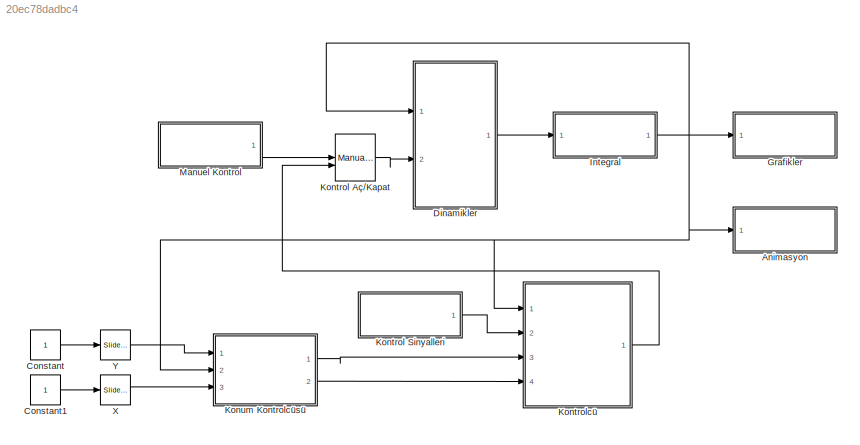
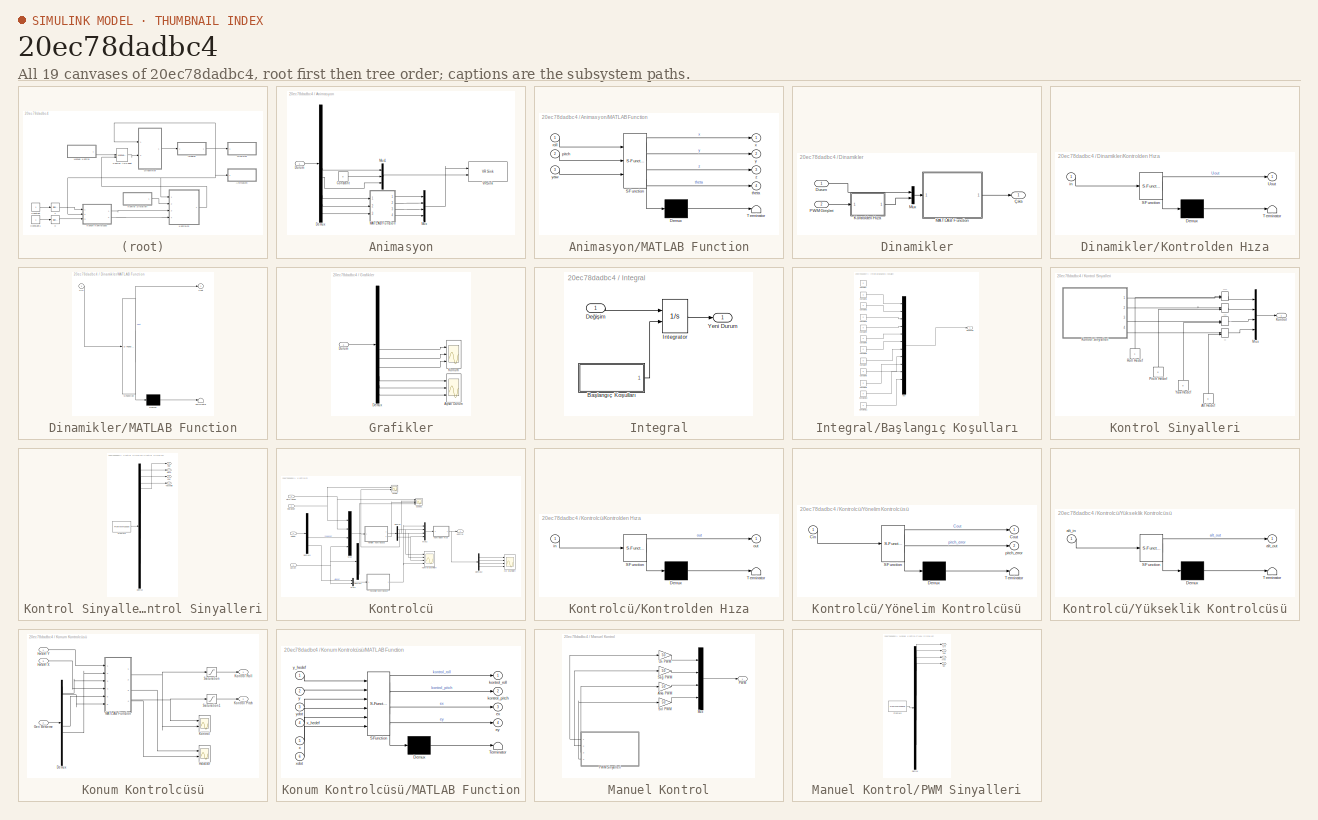
[diagram: thumbnail index - all 19 canvases of the model, root first then tree order]
MODEL slx_20ec78dadbc4
KIND model
BLOCK [SubSystem] Animasyon
  FunctionWithSeparateData = off
  MaskHideContents = off
  MinAlgLoopOccurrences = off
  Opaque = off
  Ports = [1]
  PropExecContextOutsideSubsystem = off
  RTWSystemCode = Auto
  RequestExecContextInheritance = off
BLOCK [Constant] Animasyon/Constant
  Value = 0
BLOCK [Demux] Animasyon/Demux
  DisplayOption = bar
  Outputs = 12
  Ports = [1, 12]
BLOCK [Inport] Animasyon/Durum
  IconDisplay = Port number
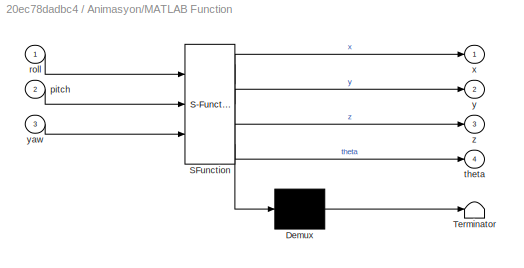
BLOCK [SubSystem] Animasyon/MATLAB Function
  ErrorFcn = Stateflow.Translate.translate
  FunctionWithSeparateData = off
  MaskHideContents = off
  MinAlgLoopOccurrences = off
  Opaque = off
  PermitHierarchicalResolution = ExplicitOnly
  Ports = [3, 4]
  PropExecContextOutsideSubsystem = off
  RTWSystemCode = Auto
  RequestExecContextInheritance = off
  SFBlockType = MATLAB Function
  TreatAsAtomicUnit = on
BLOCK [Demux] Animasyon/MATLAB Function/ Demux 
  Outputs = 1
  Ports = [1, 1]
BLOCK [S-Function] Animasyon/MATLAB Function/ SFunction 
  EnableBusSupport = on
  FunctionName = sf_sfun
  PortCounts = [3 5]
  Ports = [3, 5]
  Tag = Stateflow S-Function Quadsim 5
BLOCK [Terminator] Animasyon/MATLAB Function/ Terminator 
BLOCK [Inport] Animasyon/MATLAB Function/pitch
  IconDisplay = Port number
  Port = 2
BLOCK [Inport] Animasyon/MATLAB Function/roll
  IconDisplay = Port number
BLOCK [Outport] Animasyon/MATLAB Function/theta
  IconDisplay = Port number
  Port = 4
BLOCK [Outport] Animasyon/MATLAB Function/x
  IconDisplay = Port number
BLOCK [Outport] Animasyon/MATLAB Function/y
  IconDisplay = Port number
  Port = 2
BLOCK [Inport] Animasyon/MATLAB Function/yaw
  IconDisplay = Port number
  Port = 3
BLOCK [Outport] Animasyon/MATLAB Function/z
  IconDisplay = Port number
  Port = 3
BLOCK [Mux] Animasyon/Mux
  DisplayOption = bar
  Ports = [4, 1]
BLOCK [Mux] Animasyon/Mux1
  DisplayOption = bar
  Inputs = 3
  Ports = [3, 1]
BLOCK [Reference] Animasyon/VRSink  REF=vrlib/VR Sink
  AllowVariableSize = off
  AutoView = off
  FieldsWritten = Quadro.rotation.4.1.1.double#Quadro.translation.3.1.1.double
  InstantiateOnLoad = on
  Ports = [2]
  RemoteChange = off
  RemoteView = off
  SampleTime = 0.1
  SourceBlock = vrlib/VR Sink
  SourceType = Virtual Reality Sink
  VideoDimensions = []
  ViewEnable = on
  WorldFileName = quad.wrl
BLOCK [Constant] Constant
BLOCK [Constant] Constant1
BLOCK [SubSystem] Dinamikler
  FunctionWithSeparateData = off
  MaskHideContents = off
  MinAlgLoopOccurrences = off
  Opaque = off
  Ports = [2, 1]
  PropExecContextOutsideSubsystem = off
  RTWSystemCode = Auto
  RequestExecContextInheritance = off
BLOCK [Inport] Dinamikler/Durum
  IconDisplay = Port number
BLOCK [SubSystem] Dinamikler/Kontrolden Hıza
  ErrorFcn = Stateflow.Translate.translate
  FunctionWithSeparateData = off
  MaskHideContents = off
  MinAlgLoopOccurrences = off
  Opaque = off
  PermitHierarchicalResolution = ExplicitOnly
  Ports = [1, 1]
  PropExecContextOutsideSubsystem = off
  RTWSystemCode = Auto
  RequestExecContextInheritance = off
  SFBlockType = MATLAB Function
  TreatAsAtomicUnit = on
BLOCK [Demux] Dinamikler/Kontrolden Hıza/ Demux 
  Outputs = 1
  Ports = [1, 1]
BLOCK [S-Function] Dinamikler/Kontrolden Hıza/ SFunction 
  EnableBusSupport = on
  FunctionName = sf_sfun
  PortCounts = [1 2]
  Ports = [1, 2]
  Tag = Stateflow S-Function Quadsim 7
BLOCK [Terminator] Dinamikler/Kontrolden Hıza/ Terminator 
BLOCK [Outport] Dinamikler/Kontrolden Hıza/Uout
  IconDisplay = Port number
BLOCK [Inport] Dinamikler/Kontrolden Hıza/in
  IconDisplay = Port number
BLOCK [SubSystem] Dinamikler/MATLAB Function
  ErrorFcn = Stateflow.Translate.translate
  FunctionWithSeparateData = off
  MaskHideContents = off
  MinAlgLoopOccurrences = off
  Opaque = off
  PermitHierarchicalResolution = ExplicitOnly
  Ports = [1, 1]
  PropExecContextOutsideSubsystem = off
  RTWSystemCode = Auto
  RequestExecContextInheritance = off
  SFBlockType = MATLAB Function
  TreatAsAtomicUnit = on
BLOCK [Demux] Dinamikler/MATLAB Function/ Demux 
  Outputs = 1
  Ports = [1, 1]
BLOCK [S-Function] Dinamikler/MATLAB Function/ SFunction 
  EnableBusSupport = on
  FunctionName = sf_sfun
  PortCounts = [1 2]
  Ports = [1, 2]
  Tag = Stateflow S-Function Quadsim 2
BLOCK [Terminator] Dinamikler/MATLAB Function/ Terminator 
BLOCK [Inport] Dinamikler/MATLAB Function/Xin
  IconDisplay = Port number
BLOCK [Outport] Dinamikler/MATLAB Function/Xout
  IconDisplay = Port number
BLOCK [Mux] Dinamikler/Mux
  DisplayOption = bar
  Inputs = 2
  Ports = [2, 1]
BLOCK [Inport] Dinamikler/PWM Girişleri
  IconDisplay = Port number
  Port = 2
BLOCK [Outport] Dinamikler/Çıktı
  IconDisplay = Port number
BLOCK [SubSystem] Grafikler
  FunctionWithSeparateData = off
  MaskHideContents = off
  MinAlgLoopOccurrences = off
  Opaque = off
  Ports = [1]
  PropExecContextOutsideSubsystem = off
  RTWSystemCode = Auto
  RequestExecContextInheritance = off
BLOCK [Scope] Grafikler/Açısal Durum
  DataFormat = StructureWithTime
  Floating = off
  MaxDataPoints = 10000
  NumInputPorts = 3
  Ports = [3]
  SampleTime = 0
  ShowLegends = off
  YMax = 3e-06~1.5e-08~0.04
  YMin = 5e-07~-2.75e-08~-0.07
BLOCK [Demux] Grafikler/Demux
  DisplayOption = bar
  Outputs = 12
  Ports = [1, 12]
BLOCK [Inport] Grafikler/Durum
  IconDisplay = Port number
BLOCK [Scope] Grafikler/Konum
  DataFormat = StructureWithTime
  Floating = off
  NumInputPorts = 3
  Ports = [3]
  SampleTime = 0
  SaveName = ScopeData1
  ShowLegends = off
  YMax = 3.5~-0.87~-650
  YMin = 3.175~-0.97~-900
BLOCK [SubSystem] Integral
  FunctionWithSeparateData = off
  MaskHideContents = off
  MinAlgLoopOccurrences = off
  Opaque = off
  Ports = [1, 1]
  PropExecContextOutsideSubsystem = off
  RTWSystemCode = Auto
  RequestExecContextInheritance = off
BLOCK [SubSystem] Integral/Başlangıç Koşulları
  FunctionWithSeparateData = off
  MaskHideContents = off
  MinAlgLoopOccurrences = off
  Opaque = off
  Ports = [0, 1]
  PropExecContextOutsideSubsystem = off
  RTWSystemCode = Auto
  RequestExecContextInheritance = off
BLOCK [Outport] Integral/Başlangıç Koşulları/Başlangıç
  IconDisplay = Port number
BLOCK [Constant] Integral/Başlangıç Koşulları/Constant
  Value = 0
BLOCK [Constant] Integral/Başlangıç Koşulları/Constant1
  Value = 0
BLOCK [Constant] Integral/Başlangıç Koşulları/Constant10
  Value = 0
BLOCK [Constant] Integral/Başlangıç Koşulları/Constant11
  Value = 0
BLOCK [Constant] Integral/Başlangıç Koşulları/Constant2
  Value = 0
BLOCK [Constant] Integral/Başlangıç Koşulları/Constant3
  Value = 0
BLOCK [Constant] Integral/Başlangıç Koşulları/Constant4
  Value = 0
BLOCK [Constant] Integral/Başlangıç Koşulları/Constant5
  Value = 0
BLOCK [Constant] Integral/Başlangıç Koşulları/Constant6
  Value = 0
BLOCK [Constant] Integral/Başlangıç Koşulları/Constant7
  Value = 0
BLOCK [Constant] Integral/Başlangıç Koşulları/Constant8
  Value = 0
BLOCK [Constant] Integral/Başlangıç Koşulları/Constant9
  Value = 0
BLOCK [Mux] Integral/Başlangıç Koşulları/Mux
  DisplayOption = bar
  Inputs = 12
  Ports = [12, 1]
BLOCK [Inport] Integral/Değişim
  IconDisplay = Port number
BLOCK [Integrator] Integral/Integrator
  InitialConditionSource = external
  Ports = [2, 1]
BLOCK [Outport] Integral/Yeni Durum
  IconDisplay = Port number
BLOCK [ManualSwitch] Kontrol Aç//Kapat
  CurrentSetting = 0
BLOCK [SubSystem] Kontrol Sinyalleri
  FunctionWithSeparateData = off
  MaskHideContents = off
  MinAlgLoopOccurrences = off
  Opaque = off
  Ports = [0, 1]
  PropExecContextOutsideSubsystem = off
  RTWSystemCode = Auto
  RequestExecContextInheritance = off
BLOCK [ManualSwitch] Kontrol Sinyalleri/-
BLOCK [ManualSwitch] Kontrol Sinyalleri/--
BLOCK [ManualSwitch] Kontrol Sinyalleri/---
BLOCK [ManualSwitch] Kontrol Sinyalleri/----
BLOCK [Constant] Kontrol Sinyalleri/Alt Hedef
  Value = 0
BLOCK [Outport] Kontrol Sinyalleri/Kontrol
  IconDisplay = Port number
BLOCK [SubSystem] Kontrol Sinyalleri/Kontrol Sinyalleri
  ClipboardFcn = sigbuilder_block('clipboard');
  CloseFcn = sigbuilder_block('close');
  ContinueFcn = sigbuilder_block('continue');
  CopyFcn = sigbuilder_block('copy');
  DeleteFcn = sigbuilder_block('delete');
  FunctionWithSeparateData = off
  LoadFcn = sigbuilder_block('load');
  MaskHideContents = on
  MinAlgLoopOccurrences = off
  ModelCloseFcn = sigbuilder_block('modelClose');
  NameChangeFcn = sigbuilder_block('namechange');
  Opaque = off
  OpenFcn = sigbuilder_block('open',[6 31.5 1012.5 481.5 ]);
  PauseFcn = sigbuilder_block('pause');
  Ports = [0, 4]
  PreSaveFcn = sigbuilder_block('preSave');
  PropExecContextOutsideSubsystem = off
  RTWSystemCode = Auto
  RequestExecContextInheritance = off
  StartFcn = sigbuilder_block('start');
  StopFcn = sigbuilder_block('stop');
  Tag = STV Subsys
BLOCK [Demux] Kontrol Sinyalleri/Kontrol Sinyalleri/Demux
  Ports = [1, 4]
  Tag = STV Demux
BLOCK [FromWorkspace] Kontrol Sinyalleri/Kontrol Sinyalleri/FromWs
  SampleTime = 0
  Tag = STV FromWs
  VariableName = tuvar
  ZeroCross = on
BLOCK [Outport] Kontrol Sinyalleri/Kontrol Sinyalleri/Pitch
  IconDisplay = Port number
  Port = 2
  Tag = STV Outport
BLOCK [Outport] Kontrol Sinyalleri/Kontrol Sinyalleri/Roll
  IconDisplay = Port number
  Tag = STV Outport
BLOCK [Outport] Kontrol Sinyalleri/Kontrol Sinyalleri/Yaw
  IconDisplay = Port number
  Port = 3
  Tag = STV Outport
BLOCK [Outport] Kontrol Sinyalleri/Kontrol Sinyalleri/Yükseklik
  IconDisplay = Port number
  Port = 4
  Tag = STV Outport
BLOCK [Mux] Kontrol Sinyalleri/Mux
  DisplayOption = bar
  Ports = [4, 1]
BLOCK [Constant] Kontrol Sinyalleri/Pitch Hedef
  Value = 0
BLOCK [Constant] Kontrol Sinyalleri/Roll Hedef
BLOCK [Constant] Kontrol Sinyalleri/Yaw Hedef
  Value = 0
BLOCK [SubSystem] Kontrolcü
  FunctionWithSeparateData = off
  MaskHideContents = off
  MinAlgLoopOccurrences = off
  Opaque = off
  Ports = [4, 1]
  PropExecContextOutsideSubsystem = off
  RTWSystemCode = Auto
  RequestExecContextInheritance = off
BLOCK [Demux] Kontrolcü/Demux
  DisplayOption = bar
  Outputs = 3
  Ports = [1, 3]
BLOCK [Demux] Kontrolcü/Demux1
  DisplayOption = bar
  Ports = [1, 4]
BLOCK [Demux] Kontrolcü/Demux2
  DisplayOption = bar
  Ports = [1, 4]
BLOCK [Demux] Kontrolcü/Demux3
  DisplayOption = bar
  Outputs = 12
  Ports = [1, 12]
BLOCK [Inport] Kontrolcü/Durum
  IconDisplay = Port number
BLOCK [Inport] Kontrolcü/Hedef
  IconDisplay = Port number
  Port = 2
BLOCK [Scope] Kontrolcü/Hız Grafikleri
  DataFormat = StructureWithTime
  Floating = off
  NumInputPorts = 4
  Ports = [4]
  SampleTime = 0
  SaveName = ScopeData3
  ShowLegends = off
  YMax = 100~1~0~120
  YMin = -1200~-1~-9~-10
  ZoomMode = xonly
BLOCK [Outport] Kontrolcü/Kontrol
  IconDisplay = Port number
BLOCK [Scope] Kontrolcü/Kontrol Grafikleri
  DataFormat = StructureWithTime
  Floating = off
  NumInputPorts = 4
  Ports = [4]
  SampleTime = 0
  SaveName = ScopeData2
  ShowLegends = off
  YMax = 100~1~0~120
  YMin = -1200~-1~-9~-10
  ZoomMode = xonly
BLOCK [SubSystem] Kontrolcü/Kontrolden Hıza
  ErrorFcn = Stateflow.Translate.translate
  FunctionWithSeparateData = off
  MaskHideContents = off
  MinAlgLoopOccurrences = off
  Opaque = off
  PermitHierarchicalResolution = ExplicitOnly
  Ports = [1, 1]
  PropExecContextOutsideSubsystem = off
  RTWSystemCode = Auto
  RequestExecContextInheritance = off
  SFBlockType = MATLAB Function
  TreatAsAtomicUnit = on
BLOCK [Demux] Kontrolcü/Kontrolden Hıza/ Demux 
  Outputs = 1
  Ports = [1, 1]
BLOCK [S-Function] Kontrolcü/Kontrolden Hıza/ SFunction 
  EnableBusSupport = on
  FunctionName = sf_sfun
  PortCounts = [1 2]
  Ports = [1, 2]
  Tag = Stateflow S-Function Quadsim 6
BLOCK [Terminator] Kontrolcü/Kontrolden Hıza/ Terminator 
BLOCK [Inport] Kontrolcü/Kontrolden Hıza/in
  IconDisplay = Port number
BLOCK [Outport] Kontrolcü/Kontrolden Hıza/out
  IconDisplay = Port number
BLOCK [Mux] Kontrolcü/Mux
  DisplayOption = bar
  Ports = [4, 1]
BLOCK [Mux] Kontrolcü/Mux1
  DisplayOption = bar
  Inputs = 2
  Ports = [2, 1]
BLOCK [Mux] Kontrolcü/Mux2
  DisplayOption = bar
  Ports = [4, 1]
BLOCK [Inport] Kontrolcü/Pitch Hedef
  IconDisplay = Port number
  Port = 4
BLOCK [Inport] Kontrolcü/Roll Hedef
  IconDisplay = Port number
  Port = 3
BLOCK [Scope] Kontrolcü/Scope
  DataFormat = StructureWithTime
  Floating = off
  NumInputPorts = 2
  Ports = [2]
  SampleTime = 0
  SaveName = ScopeData6
  ShowLegends = off
  YMax = 5~5
  YMin = -5~-5
BLOCK [Scope] Kontrolcü/Scope1
  DataFormat = StructureWithTime
  Floating = off
  NumInputPorts = 4
  Ports = [4]
  SampleTime = 0
  SaveName = ScopeData7
  ShowLegends = off
  YMax = 5~5~5~5
  YMin = -5~-5~-5~-5
BLOCK [SubSystem] Kontrolcü/Yönelim Kontrolcüsü
  ErrorFcn = Stateflow.Translate.translate
  FunctionWithSeparateData = off
  MaskHideContents = off
  MinAlgLoopOccurrences = off
  Opaque = off
  PermitHierarchicalResolution = ExplicitOnly
  Ports = [1, 2]
  PropExecContextOutsideSubsystem = off
  RTWSystemCode = Auto
  RequestExecContextInheritance = off
  SFBlockType = MATLAB Function
  TreatAsAtomicUnit = on
BLOCK [Demux] Kontrolcü/Yönelim Kontrolcüsü/ Demux 
  Outputs = 1
  Ports = [1, 1]
BLOCK [S-Function] Kontrolcü/Yönelim Kontrolcüsü/ SFunction 
  EnableBusSupport = on
  FunctionName = sf_sfun
  PortCounts = [1 3]
  Ports = [1, 3]
  Tag = Stateflow S-Function Quadsim 1
BLOCK [Terminator] Kontrolcü/Yönelim Kontrolcüsü/ Terminator 
BLOCK [Inport] Kontrolcü/Yönelim Kontrolcüsü/Cin
  IconDisplay = Port number
BLOCK [Outport] Kontrolcü/Yönelim Kontrolcüsü/Cout
  IconDisplay = Port number
BLOCK [Outport] Kontrolcü/Yönelim Kontrolcüsü/pitch_error
  IconDisplay = Port number
  Port = 2
BLOCK [SubSystem] Kontrolcü/Yükseklik Kontrolcüsü
  ErrorFcn = Stateflow.Translate.translate
  FunctionWithSeparateData = off
  MaskHideContents = off
  MinAlgLoopOccurrences = off
  Opaque = off
  PermitHierarchicalResolution = ExplicitOnly
  Ports = [1, 1]
  PropExecContextOutsideSubsystem = off
  RTWSystemCode = Auto
  RequestExecContextInheritance = off
  SFBlockType = MATLAB Function
  TreatAsAtomicUnit = on
BLOCK [Demux] Kontrolcü/Yükseklik Kontrolcüsü/ Demux 
  Outputs = 1
  Ports = [1, 1]
BLOCK [S-Function] Kontrolcü/Yükseklik Kontrolcüsü/ SFunction 
  EnableBusSupport = on
  FunctionName = sf_sfun
  PortCounts = [1 2]
  Ports = [1, 2]
  Tag = Stateflow S-Function Quadsim 3
BLOCK [Terminator] Kontrolcü/Yükseklik Kontrolcüsü/ Terminator 
BLOCK [Inport] Kontrolcü/Yükseklik Kontrolcüsü/alt_in
  IconDisplay = Port number
BLOCK [Outport] Kontrolcü/Yükseklik Kontrolcüsü/alt_out
  IconDisplay = Port number
BLOCK [SubSystem] Konum Kontrolcüsü
  FunctionWithSeparateData = off
  MaskHideContents = off
  MinAlgLoopOccurrences = off
  Opaque = off
  Ports = [3, 2]
  PropExecContextOutsideSubsystem = off
  RTWSystemCode = Auto
  RequestExecContextInheritance = off
BLOCK [Demux] Konum Kontrolcüsü/Demux
  DisplayOption = bar
  Outputs = 12
  Ports = [1, 12]
BLOCK [Inport] Konum Kontrolcüsü/Geri Besleme
  IconDisplay = Port number
  Port = 2
BLOCK [Scope] Konum Kontrolcüsü/Hatalar
  DataFormat = StructureWithTime
  Floating = off
  NumInputPorts = 2
  Ports = [2]
  SampleTime = 0
  SaveName = ScopeData4
  ShowLegends = off
  YMax = 5~5
  YMin = -5~-5
BLOCK [Inport] Konum Kontrolcüsü/Hedef X
  IconDisplay = Port number
  Port = 3
BLOCK [Inport] Konum Kontrolcüsü/Hedef Y
  IconDisplay = Port number
BLOCK [Scope] Konum Kontrolcüsü/Kontrol
  DataFormat = StructureWithTime
  Floating = off
  NumInputPorts = 2
  Ports = [2]
  SampleTime = 0
  SaveName = ScopeData5
  ShowLegends = off
  YMax = 5~5
  YMin = -5~-5
BLOCK [Outport] Konum Kontrolcüsü/Kontrol Pitch
  IconDisplay = Port number
  Port = 2
BLOCK [Outport] Konum Kontrolcüsü/Kontrol Roll
  IconDisplay = Port number
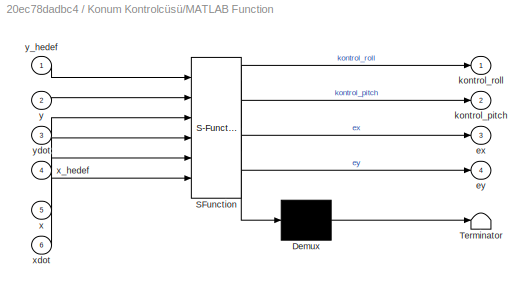
BLOCK [SubSystem] Konum Kontrolcüsü/MATLAB Function
  ErrorFcn = Stateflow.Translate.translate
  FunctionWithSeparateData = off
  MaskHideContents = off
  MinAlgLoopOccurrences = off
  Opaque = off
  PermitHierarchicalResolution = ExplicitOnly
  Ports = [6, 4]
  PropExecContextOutsideSubsystem = off
  RTWSystemCode = Auto
  RequestExecContextInheritance = off
  SFBlockType = MATLAB Function
  TreatAsAtomicUnit = on
BLOCK [Demux] Konum Kontrolcüsü/MATLAB Function/ Demux 
  Outputs = 1
  Ports = [1, 1]
BLOCK [S-Function] Konum Kontrolcüsü/MATLAB Function/ SFunction 
  EnableBusSupport = on
  FunctionName = sf_sfun
  PortCounts = [6 5]
  Ports = [6, 5]
  Tag = Stateflow S-Function Quadsim 4
BLOCK [Terminator] Konum Kontrolcüsü/MATLAB Function/ Terminator 
BLOCK [Outport] Konum Kontrolcüsü/MATLAB Function/ex
  IconDisplay = Port number
  Port = 3
BLOCK [Outport] Konum Kontrolcüsü/MATLAB Function/ey
  IconDisplay = Port number
  Port = 4
BLOCK [Outport] Konum Kontrolcüsü/MATLAB Function/kontrol_pitch
  IconDisplay = Port number
  Port = 2
BLOCK [Outport] Konum Kontrolcüsü/MATLAB Function/kontrol_roll
  IconDisplay = Port number
BLOCK [Inport] Konum Kontrolcüsü/MATLAB Function/x
  IconDisplay = Port number
  Port = 5
BLOCK [Inport] Konum Kontrolcüsü/MATLAB Function/x_hedef
  IconDisplay = Port number
  Port = 4
BLOCK [Inport] Konum Kontrolcüsü/MATLAB Function/xdot
  IconDisplay = Port number
  Port = 6
BLOCK [Inport] Konum Kontrolcüsü/MATLAB Function/y
  IconDisplay = Port number
  Port = 2
BLOCK [Inport] Konum Kontrolcüsü/MATLAB Function/y_hedef
  IconDisplay = Port number
BLOCK [Inport] Konum Kontrolcüsü/MATLAB Function/ydot
  IconDisplay = Port number
  Port = 3
BLOCK [Saturate] Konum Kontrolcüsü/Saturation
  InputPortMap = u0
  LowerLimit = -2
  Ports = [1, 1]
  UpperLimit = 2
BLOCK [Saturate] Konum Kontrolcüsü/Saturation1
  InputPortMap = u0
  LowerLimit = -2
  Ports = [1, 1]
  UpperLimit = 2
BLOCK [SubSystem] Manuel Kontrol
  FunctionWithSeparateData = off
  MaskHideContents = off
  MinAlgLoopOccurrences = off
  Opaque = off
  Ports = [0, 1]
  PropExecContextOutsideSubsystem = off
  RTWSystemCode = Auto
  RequestExecContextInheritance = off
BLOCK [Gain] Manuel Kontrol/Arka PWM
  Gain = 50
  OutDataTypeStr = Inherit: Inherit via internal rule
  ParamDataTypeStr = Inherit: Inherit via internal rule
  SaturateOnIntegerOverflow = off
BLOCK [Mux] Manuel Kontrol/Mux
  DisplayOption = bar
  Ports = [4, 1]
BLOCK [Outport] Manuel Kontrol/PWM
  IconDisplay = Port number
BLOCK [SubSystem] Manuel Kontrol/PWM Sinyalleri
  ClipboardFcn = sigbuilder_block('clipboard');
  CloseFcn = sigbuilder_block('close');
  ContinueFcn = sigbuilder_block('continue');
  CopyFcn = sigbuilder_block('copy');
  DeleteFcn = sigbuilder_block('delete');
  FunctionWithSeparateData = off
  LoadFcn = sigbuilder_block('load');
  MaskHideContents = on
  MinAlgLoopOccurrences = off
  ModelCloseFcn = sigbuilder_block('modelClose');
  NameChangeFcn = sigbuilder_block('namechange');
  Opaque = off
  OpenFcn = sigbuilder_block('open',[6 28.5 1012.5 484.5 ]);
  PauseFcn = sigbuilder_block('pause');
  Ports = [0, 4]
  PreSaveFcn = sigbuilder_block('preSave');
  PropExecContextOutsideSubsystem = off
  RTWSystemCode = Auto
  RequestExecContextInheritance = off
  StartFcn = sigbuilder_block('start');
  StopFcn = sigbuilder_block('stop');
  Tag = STV Subsys
BLOCK [Outport] Manuel Kontrol/PWM Sinyalleri/Arka
  IconDisplay = Port number
  Port = 3
  Tag = STV Outport
BLOCK [Demux] Manuel Kontrol/PWM Sinyalleri/Demux
  Ports = [1, 4]
  Tag = STV Demux
BLOCK [FromWorkspace] Manuel Kontrol/PWM Sinyalleri/FromWs
  SampleTime = 0
  Tag = STV FromWs
  VariableName = tuvar
  ZeroCross = on
BLOCK [Outport] Manuel Kontrol/PWM Sinyalleri/Sağ
  IconDisplay = Port number
  Port = 2
  Tag = STV Outport
BLOCK [Outport] Manuel Kontrol/PWM Sinyalleri/Sol
  IconDisplay = Port number
  Port = 4
  Tag = STV Outport
BLOCK [Outport] Manuel Kontrol/PWM Sinyalleri/Ön
  IconDisplay = Port number
  Tag = STV Outport
BLOCK [Gain] Manuel Kontrol/Sağ PWM
  Gain = 50
  OutDataTypeStr = Inherit: Inherit via internal rule
  ParamDataTypeStr = Inherit: Inherit via internal rule
  SaturateOnIntegerOverflow = off
BLOCK [Gain] Manuel Kontrol/Sol PWM
  Gain = 50
  OutDataTypeStr = Inherit: Inherit via internal rule
  ParamDataTypeStr = Inherit: Inherit via internal rule
  SaturateOnIntegerOverflow = off
BLOCK [Gain] Manuel Kontrol/Ön PWM
  Gain = 50
  OutDataTypeStr = Inherit: Inherit via internal rule
  ParamDataTypeStr = Inherit: Inherit via internal rule
  SaturateOnIntegerOverflow = off
BLOCK [Reference] X  REF=simulink/Math
Operations/Slider
Gain
  Ports = [1, 1]
  SourceBlock = simulink/Math\nOperations/Slider\nGain
  SourceType = Slider Gain
  gain = 5
  high = 5
  low = -5
BLOCK [Reference] Y  REF=simulink/Math
Operations/Slider
Gain
  Ports = [1, 1]
  SourceBlock = simulink/Math\nOperations/Slider\nGain
  SourceType = Slider Gain
  gain = -5
  high = 5
  low = -5
LINE Animasyon/Constant:1 -> Animasyon/Mux1:2
LINE Animasyon/Demux:10 -> Animasyon/MATLAB Function:1
LINE Animasyon/Demux:11 -> Animasyon/MATLAB Function:2
LINE Animasyon/Demux:12 -> Animasyon/MATLAB Function:3
LINE Animasyon/Demux:7 -> Animasyon/Mux1:1
LINE Animasyon/Demux:8 -> Animasyon/Mux1:3
LINE Animasyon/Durum:1 -> Animasyon/Demux:1
LINE Animasyon/MATLAB Function:1 -> Animasyon/Mux:1
LINE Animasyon/MATLAB Function:2 -> Animasyon/Mux:2
LINE Animasyon/MATLAB Function:3 -> Animasyon/Mux:3
LINE Animasyon/MATLAB Function:4 -> Animasyon/Mux:4
LINE Animasyon/Mux1:1 -> Animasyon/VRSink:2
LINE Animasyon/Mux:1 -> Animasyon/VRSink:1
LINE Constant1:1 -> X:1
LINE Constant:1 -> Y:1
LINE Dinamikler/Durum:1 -> Dinamikler/Mux:1
LINE Dinamikler/Kontrolden Hıza:1 -> Dinamikler/Mux:2
LINE Dinamikler/MATLAB Function:1 -> Dinamikler/Çıktı:1
LINE Dinamikler/Mux:1 -> Dinamikler/MATLAB Function:1
LINE Dinamikler/PWM Girişleri:1 -> Dinamikler/Kontrolden Hıza:1
LINE Dinamikler:1 -> Integral:1
LINE Grafikler/Demux:10 -> Grafikler/Açısal Durum:1
LINE Grafikler/Demux:11 -> Grafikler/Açısal Durum:2
LINE Grafikler/Demux:12 -> Grafikler/Açısal Durum:3
LINE Grafikler/Demux:7 -> Grafikler/Konum:1
LINE Grafikler/Demux:8 -> Grafikler/Konum:2
LINE Grafikler/Demux:9 -> Grafikler/Konum:3
LINE Grafikler/Durum:1 -> Grafikler/Demux:1
LINE Integral/Başlangıç Koşulları/Constant10:1 -> Integral/Başlangıç Koşulları/Mux:10
LINE Integral/Başlangıç Koşulları/Constant11:1 -> Integral/Başlangıç Koşulları/Mux:11
LINE Integral/Başlangıç Koşulları/Constant1:1 -> Integral/Başlangıç Koşulları/Mux:1
LINE Integral/Başlangıç Koşulları/Constant2:1 -> Integral/Başlangıç Koşulları/Mux:2
LINE Integral/Başlangıç Koşulları/Constant3:1 -> Integral/Başlangıç Koşulları/Mux:3
LINE Integral/Başlangıç Koşulları/Constant4:1 -> Integral/Başlangıç Koşulları/Mux:4
LINE Integral/Başlangıç Koşulları/Constant5:1 -> Integral/Başlangıç Koşulları/Mux:5
LINE Integral/Başlangıç Koşulları/Constant6:1 -> Integral/Başlangıç Koşulları/Mux:6
LINE Integral/Başlangıç Koşulları/Constant7:1 -> Integral/Başlangıç Koşulları/Mux:7
LINE Integral/Başlangıç Koşulları/Constant8:1 -> Integral/Başlangıç Koşulları/Mux:8
LINE Integral/Başlangıç Koşulları/Constant9:1 -> Integral/Başlangıç Koşulları/Mux:9
LINE Integral/Başlangıç Koşulları/Mux:1 -> Integral/Başlangıç Koşulları/Başlangıç:1
LINE Integral/Başlangıç Koşulları:1 -> Integral/Integrator:2
LINE Integral/Değişim:1 -> Integral/Integrator:1
LINE Integral/Integrator:1 -> Integral/Yeni Durum:1
NET Integral:1 -> Animasyon:1, Dinamikler:1, Grafikler:1, Kontrolcü:1, Konum Kontrolcüsü:2
LINE Kontrol Aç//Kapat:1 -> Dinamikler:2
LINE Kontrol Sinyalleri/----:1 -> Kontrol Sinyalleri/Mux:1
LINE Kontrol Sinyalleri/---:1 -> Kontrol Sinyalleri/Mux:2
LINE Kontrol Sinyalleri/--:1 -> Kontrol Sinyalleri/Mux:4
LINE Kontrol Sinyalleri/-:1 -> Kontrol Sinyalleri/Mux:3
LINE Kontrol Sinyalleri/Alt Hedef:1 -> Kontrol Sinyalleri/--:2
LINE Kontrol Sinyalleri/Kontrol Sinyalleri:1 -> Kontrol Sinyalleri/----:1
LINE Kontrol Sinyalleri/Kontrol Sinyalleri:2 -> Kontrol Sinyalleri/---:1
LINE Kontrol Sinyalleri/Kontrol Sinyalleri:3 -> Kontrol Sinyalleri/-:1
LINE Kontrol Sinyalleri/Kontrol Sinyalleri:4 -> Kontrol Sinyalleri/--:1
LINE Kontrol Sinyalleri/Mux:1 -> Kontrol Sinyalleri/Kontrol:1
LINE Kontrol Sinyalleri/Pitch Hedef:1 -> Kontrol Sinyalleri/---:2
LINE Kontrol Sinyalleri/Roll Hedef:1 -> Kontrol Sinyalleri/----:2
LINE Kontrol Sinyalleri/Yaw Hedef:1 -> Kontrol Sinyalleri/-:2
LINE Kontrol Sinyalleri:1 -> Kontrolcü:2
LINE Kontrolcü/Demux1:3 -> Kontrolcü/Mux:3
LINE Kontrolcü/Demux1:4 -> Kontrolcü/Mux1:1
LINE Kontrolcü/Demux2:1 -> Kontrolcü/Hız Grafikleri:1
LINE Kontrolcü/Demux2:2 -> Kontrolcü/Hız Grafikleri:2
LINE Kontrolcü/Demux2:3 -> Kontrolcü/Hız Grafikleri:3
LINE Kontrolcü/Demux2:4 -> Kontrolcü/Hız Grafikleri:4
LINE Kontrolcü/Demux3:11 -> Kontrolcü/Scope1:4
NET Kontrolcü/Demux:1 -> Kontrolcü/Kontrol Grafikleri:1, Kontrolcü/Mux2:2, Kontrolcü/Scope:2
NET Kontrolcü/Demux:2 -> Kontrolcü/Kontrol Grafikleri:2, Kontrolcü/Mux2:3, Kontrolcü/Scope1:2
NET Kontrolcü/Demux:3 -> Kontrolcü/Kontrol Grafikleri:3, Kontrolcü/Mux2:4
NET Kontrolcü/Durum:1 -> Kontrolcü/Demux3:1, Kontrolcü/Mux1:2, Kontrolcü/Mux:4
LINE Kontrolcü/Hedef:1 -> Kontrolcü/Demux1:1
NET Kontrolcü/Kontrolden Hıza:1 -> Kontrolcü/Demux2:1, Kontrolcü/Kontrol:1
LINE Kontrolcü/Mux1:1 -> Kontrolcü/Yükseklik Kontrolcüsü:1
LINE Kontrolcü/Mux2:1 -> Kontrolcü/Kontrolden Hıza:1
LINE Kontrolcü/Mux:1 -> Kontrolcü/Yönelim Kontrolcüsü:1
NET Kontrolcü/Pitch Hedef:1 -> Kontrolcü/Mux:2, Kontrolcü/Scope1:1
NET Kontrolcü/Roll Hedef:1 -> Kontrolcü/Mux:1, Kontrolcü/Scope:1
LINE Kontrolcü/Yönelim Kontrolcüsü:1 -> Kontrolcü/Demux:1
LINE Kontrolcü/Yönelim Kontrolcüsü:2 -> Kontrolcü/Scope1:3
NET Kontrolcü/Yükseklik Kontrolcüsü:1 -> Kontrolcü/Kontrol Grafikleri:4, Kontrolcü/Mux2:1
LINE Kontrolcü:1 -> Kontrol Aç//Kapat:2
LINE Konum Kontrolcüsü/Demux:1 -> Konum Kontrolcüsü/MATLAB Function:6
LINE Konum Kontrolcüsü/Demux:2 -> Konum Kontrolcüsü/MATLAB Function:3
LINE Konum Kontrolcüsü/Demux:7 -> Konum Kontrolcüsü/MATLAB Function:5
LINE Konum Kontrolcüsü/Demux:8 -> Konum Kontrolcüsü/MATLAB Function:2
LINE Konum Kontrolcüsü/Geri Besleme:1 -> Konum Kontrolcüsü/Demux:1
LINE Konum Kontrolcüsü/Hedef X:1 -> Konum Kontrolcüsü/MATLAB Function:4
LINE Konum Kontrolcüsü/Hedef Y:1 -> Konum Kontrolcüsü/MATLAB Function:1
NET Konum Kontrolcüsü/MATLAB Function:1 -> Konum Kontrolcüsü/Kontrol:2, Konum Kontrolcüsü/Saturation:1
NET Konum Kontrolcüsü/MATLAB Function:2 -> Konum Kontrolcüsü/Kontrol:1, Konum Kontrolcüsü/Saturation1:1
LINE Konum Kontrolcüsü/MATLAB Function:3 -> Konum Kontrolcüsü/Hatalar:1
LINE Konum Kontrolcüsü/MATLAB Function:4 -> Konum Kontrolcüsü/Hatalar:2
LINE Konum Kontrolcüsü/Saturation1:1 -> Konum Kontrolcüsü/Kontrol Pitch:1
LINE Konum Kontrolcüsü/Saturation:1 -> Konum Kontrolcüsü/Kontrol Roll:1
LINE Konum Kontrolcüsü:1 -> Kontrolcü:3
LINE Konum Kontrolcüsü:2 -> Kontrolcü:4
LINE Manuel Kontrol/Arka PWM:1 -> Manuel Kontrol/Mux:3
LINE Manuel Kontrol/Mux:1 -> Manuel Kontrol/PWM:1
LINE Manuel Kontrol/PWM Sinyalleri:1 -> Manuel Kontrol/Ön PWM:1
LINE Manuel Kontrol/PWM Sinyalleri:2 -> Manuel Kontrol/Sağ PWM:1
LINE Manuel Kontrol/PWM Sinyalleri:3 -> Manuel Kontrol/Arka PWM:1
LINE Manuel Kontrol/PWM Sinyalleri:4 -> Manuel Kontrol/Sol PWM:1
LINE Manuel Kontrol/Sağ PWM:1 -> Manuel Kontrol/Mux:2
LINE Manuel Kontrol/Sol PWM:1 -> Manuel Kontrol/Mux:4
LINE Manuel Kontrol/Ön PWM:1 -> Manuel Kontrol/Mux:1
LINE Manuel Kontrol:1 -> Kontrol Aç//Kapat:1
LINE X:1 -> Konum Kontrolcüsü:3
LINE Y:1 -> Konum Kontrolcüsü:1
note: NET lines group one-source signal fan-out (src -> all destinations, sorted); 1:1 wires keep LINE
